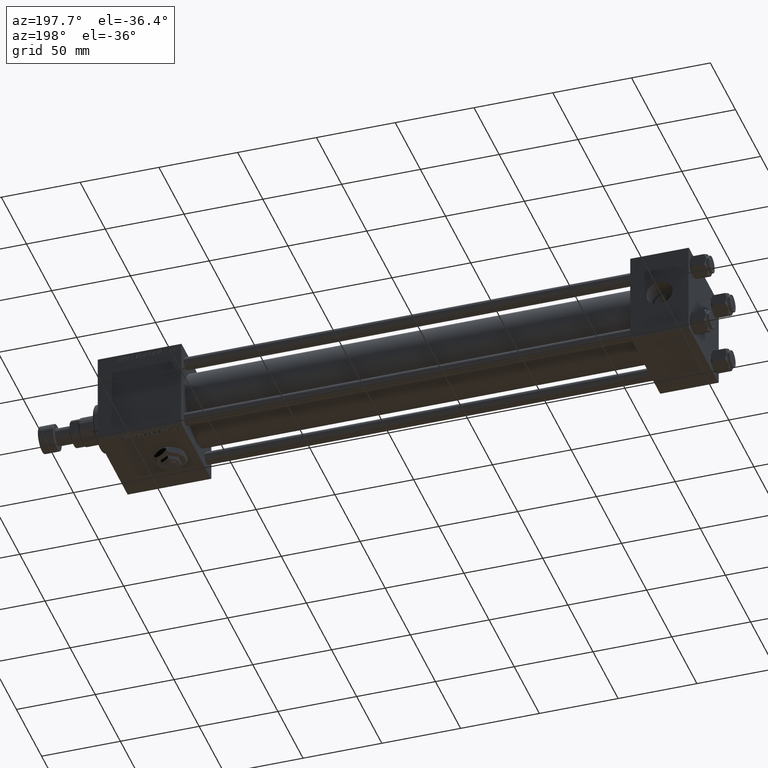
[diagram: clean part render]
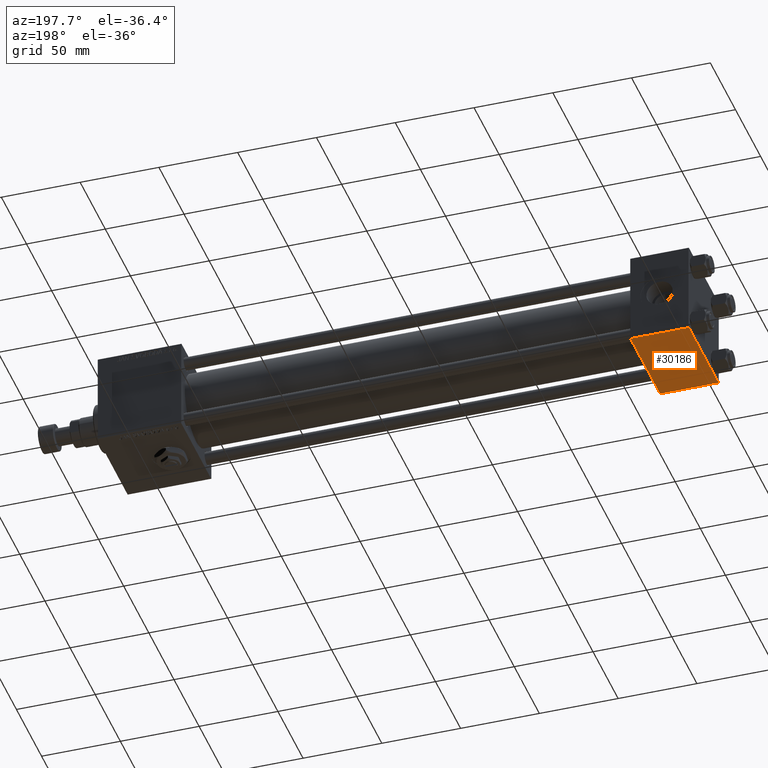
[diagram: same view with one face highlighted and labeled with its STEP entity id]
A machine part, auxiliary view. The second image highlights one B-rep face of the part: STEP entity #30186.
In plain terms, the highlighted planar face has unit normal (0, 0, -1).
Its self-contained STEP definition (entity closure, byte-faithful):
#223 = CARTESIAN_POINT ( 'NONE',  ( 37.00000000000000000, 29.49999999999997868, -30.00000000000000000 ) ) ;
#244 = DIRECTION ( 'NONE',  ( 0.000000000000000000, 1.000000000000000000, 1.156482317317871725E-16 ) ) ;
#1331 = CARTESIAN_POINT ( 'NONE',  ( 0.000000000000000000, 29.49999999999997868, -30.00000000000000000 ) ) ;
#2463 = EDGE_CURVE ( 'NONE', #45415, #3428, #12220, .T. ) ;
#3002 = VECTOR ( 'NONE', #27982, 1000.000000000000000 ) ;
#3428 = VERTEX_POINT ( 'NONE', #34819 ) ;
#4520 = VERTEX_POINT ( 'NONE', #35024 ) ;
#5223 = ORIENTED_EDGE ( 'NONE', *, *, #44860, .T. ) ;
#6254 = CARTESIAN_POINT ( 'NONE',  ( 37.00000000000000000, -29.50000000000000000, -30.00000000000000711 ) ) ;
#7948 = ORIENTED_EDGE ( 'NONE', *, *, #34911, .T. ) ;
#8245 = CARTESIAN_POINT ( 'NONE',  ( 37.00000000000000000, 29.99999999999999289, -30.00000000000000000 ) ) ;
#10331 = DIRECTION ( 'NONE',  ( 0.000000000000000000, -1.000000000000000000, -1.156482317317871725E-16 ) ) ;
#12220 = LINE ( 'NONE', #36516, #3002 ) ;
#12505 = DIRECTION ( 'NONE',  ( 0.000000000000000000, 1.156482317317871725E-16, -1.000000000000000000 ) ) ;
#19951 = DIRECTION ( 'NONE',  ( 1.000000000000000000, 0.000000000000000000, 0.000000000000000000 ) ) ;
#20243 = LINE ( 'NONE', #52806, #42465 ) ;
#22095 = LINE ( 'NONE', #26375, #28044 ) ;
#26091 = EDGE_LOOP ( 'NONE', ( #32232, #7948, #5223, #35921 ) ) ;
#26375 = CARTESIAN_POINT ( 'NONE',  ( 0.000000000000000000, 29.99999999999999289, -30.00000000000000000 ) ) ;
#26940 = VERTEX_POINT ( 'NONE', #1331 ) ;
#27982 = DIRECTION ( 'NONE',  ( -1.000000000000000000, 0.000000000000000000, 0.000000000000000000 ) ) ;
#28044 = VECTOR ( 'NONE', #10331, 1000.000000000000000 ) ;
#30186 = ADVANCED_FACE ( 'NONE', ( #36535 ), #52814, .T. ) ;
#32232 = ORIENTED_EDGE ( 'NONE', *, *, #42670, .F. ) ;
#34819 = CARTESIAN_POINT ( 'NONE',  ( 0.000000000000000000, -29.50000000000000000, -30.00000000000000711 ) ) ;
#34911 = EDGE_CURVE ( 'NONE', #26940, #4520, #44795, .T. ) ;
#35024 = CARTESIAN_POINT ( 'NONE',  ( 37.00000000000000000, 29.49999999999997868, -30.00000000000000000 ) ) ;
#35586 = AXIS2_PLACEMENT_3D ( 'NONE', #8245, #12505, #244 ) ;
#35921 = ORIENTED_EDGE ( 'NONE', *, *, #2463, .T. ) ;
#36516 = CARTESIAN_POINT ( 'NONE',  ( 0.000000000000000000, -29.50000000000001066, -30.00000000000000711 ) ) ;
#36535 = FACE_OUTER_BOUND ( 'NONE', #26091, .T. ) ;
#42465 = VECTOR ( 'NONE', #49080, 1000.000000000000000 ) ;
#42560 = VECTOR ( 'NONE', #19951, 1000.000000000000000 ) ;
#42670 = EDGE_CURVE ( 'NONE', #26940, #3428, #22095, .T. ) ;
#44795 = LINE ( 'NONE', #223, #42560 ) ;
#44860 = EDGE_CURVE ( 'NONE', #4520, #45415, #20243, .T. ) ;
#45415 = VERTEX_POINT ( 'NONE', #6254 ) ;
#49080 = DIRECTION ( 'NONE',  ( 0.000000000000000000, -1.000000000000000000, -1.156482317317871725E-16 ) ) ;
#52806 = CARTESIAN_POINT ( 'NONE',  ( 37.00000000000000000, 29.99999999999999289, -30.00000000000000000 ) ) ;
#52814 = PLANE ( 'NONE',  #35586 ) ;